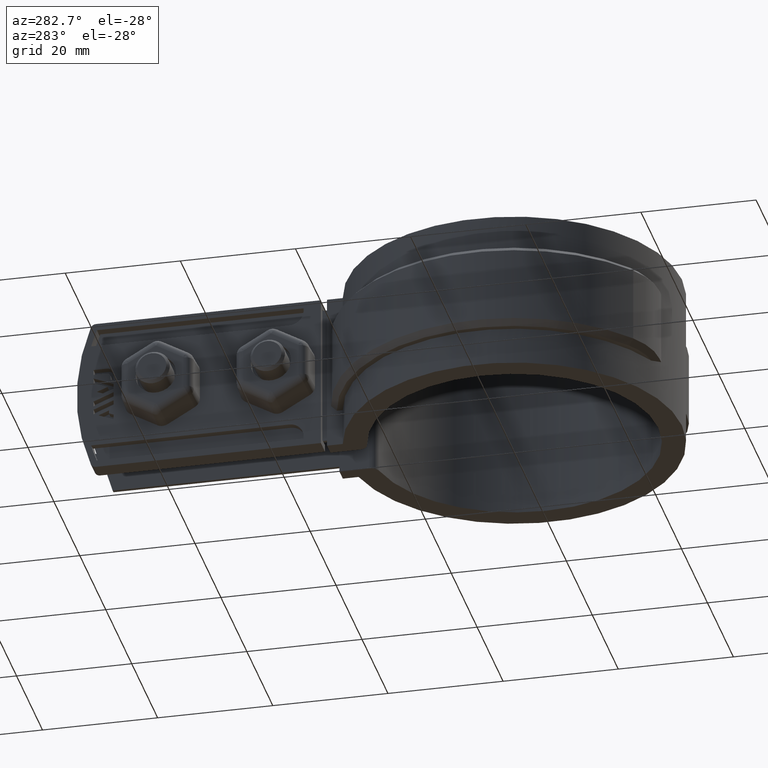
[diagram: clean part render]
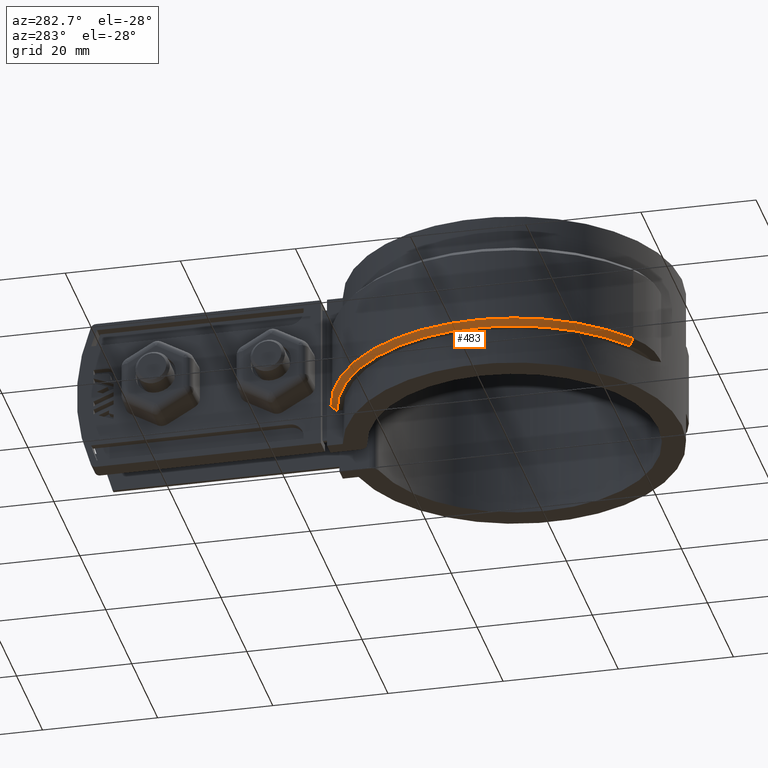
[diagram: same view with one face highlighted and labeled with its STEP entity id]
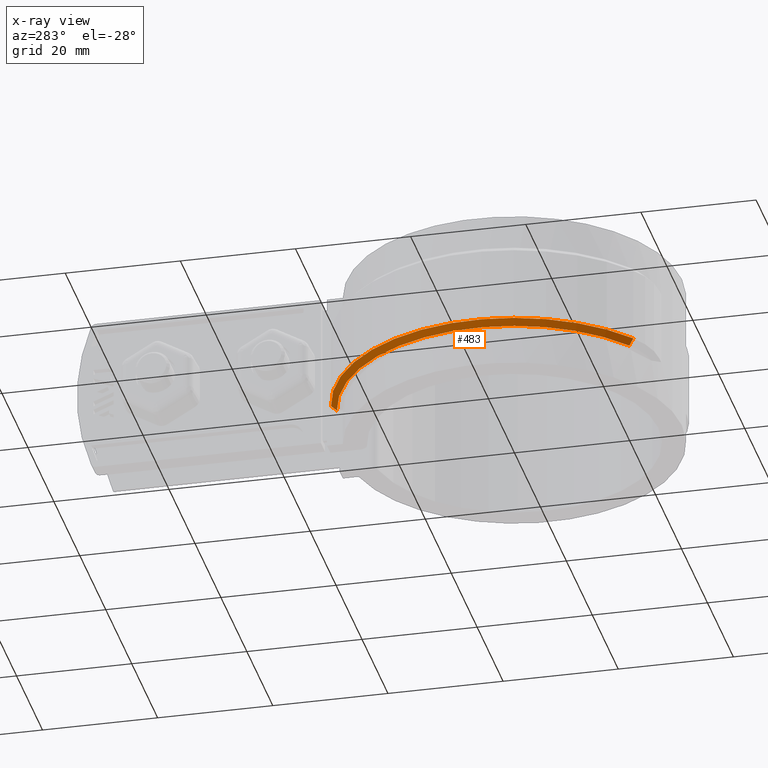
[diagram: x-ray of the same camera — body ghosted, the highlighted face saturated]
A machine part, auxiliary view. The second image highlights one B-rep face of the part: STEP entity #483.
The next image is the same camera in x-ray: the body ghosted, the highlighted face saturated — about 0% of this face is hidden behind the body in this view.
In plain terms, the highlighted conical surface has half-angle 45 deg.
Its self-contained STEP definition (entity closure, byte-faithful):
#483 = ADVANCED_FACE( '', ( #978 ), #979, .T. );
#978 = FACE_OUTER_BOUND( '', #2324, .T. );
#979 = CONICAL_SURFACE( '', #2325, 31.0950000000000, 0.785398163397447 );
#2324 = EDGE_LOOP( '', ( #5029, #5030, #5031, #5032 ) );
#2325 = AXIS2_PLACEMENT_3D( '', #5033, #5034, #5035 );
#5029 = ORIENTED_EDGE( '', *, *, #7540, .F. );
#5030 = ORIENTED_EDGE( '', *, *, #7567, .F. );
#5031 = ORIENTED_EDGE( '', *, *, #7586, .F. );
#5032 = ORIENTED_EDGE( '', *, *, #7561, .F. );
#5033 = CARTESIAN_POINT( '', ( 0.000000000000000, 0.000000000000000, -19.0000000000000 ) );
#5034 = DIRECTION( '', ( 0.000000000000000, 0.000000000000000, 1.00000000000000 ) );
#5035 = DIRECTION( '', ( 1.00000000000000, 0.000000000000000, 0.000000000000000 ) );
#7540 = EDGE_CURVE( '', #8757, #8759, #8760, .T. );
#7561 = EDGE_CURVE( '', #8759, #8795, #8796, .F. );
#7567 = EDGE_CURVE( '', #8802, #8757, #8804, .T. );
#7586 = EDGE_CURVE( '', #8795, #8802, #8830, .T. );
#8757 = VERTEX_POINT( '', #12283 );
#8759 = VERTEX_POINT( '', #12286 );
#8760 = B_SPLINE_CURVE_WITH_KNOTS( '', 3, ( #12287, #12288, #12289, #12290 ), .UNSPECIFIED., .F., .F., ( 4, 4 ), ( 0.000000000000000, 0.00142877906291672 ), .UNSPECIFIED. );
#8795 = VERTEX_POINT( '', #12348 );
#8796 = CIRCLE( '', #12349, 31.0950000000000 );
#8802 = VERTEX_POINT( '', #12356 );
#8804 = CIRCLE( '', #12358, 30.0950000000000 );
#8830 = LINE( '', #12392, #12393 );
#12283 = CARTESIAN_POINT( '', ( -6.10000000000002, 29.4703075145137, -20.0000000000000 ) );
#12286 = CARTESIAN_POINT( '', ( -6.10000000000002, 30.4908023016778, -19.0000000000000 ) );
#12287 = CARTESIAN_POINT( '', ( -6.10000000000002, 29.4703075145137, -20.0000000000000 ) );
#12288 = CARTESIAN_POINT( '', ( -6.10000000000002, 29.8105871020805, -19.6667837153511 ) );
#12289 = CARTESIAN_POINT( '', ( -6.10000000000003, 30.1507483085061, -19.3334465051517 ) );
#12290 = CARTESIAN_POINT( '', ( -6.10000000000003, 30.4908023016778, -19.0000000000000 ) );
#12348 = CARTESIAN_POINT( '', ( -18.6948570380802, -24.8475621606173, -19.0000000000000 ) );
#12349 = AXIS2_PLACEMENT_3D( '', #14267, #14268, #14269 );
#12356 = CARTESIAN_POINT( '', ( -18.0936395742410, -24.0484767076308, -20.0000000000000 ) );
#12358 = AXIS2_PLACEMENT_3D( '', #14283, #14284, #14285 );
#12392 = CARTESIAN_POINT( '', ( -18.6948570380802, -24.8475621606173, -19.0000000000000 ) );
#12393 = VECTOR( '', #14324, 1000.00000000000 );
#14267 = CARTESIAN_POINT( '', ( 0.000000000000000, 0.000000000000000, -19.0000000000000 ) );
#14268 = DIRECTION( '', ( 0.000000000000000, 0.000000000000000, -1.00000000000000 ) );
#14269 = DIRECTION( '', ( -1.00000000000000, 0.000000000000000, 0.000000000000000 ) );
#14283 = CARTESIAN_POINT( '', ( 0.000000000000000, 0.000000000000000, -20.0000000000000 ) );
#14284 = DIRECTION( '', ( 0.000000000000000, 0.000000000000000, -1.00000000000000 ) );
#14285 = DIRECTION( '', ( -1.00000000000000, 0.000000000000000, 0.000000000000000 ) );
#14324 = DIRECTION( '', ( 0.425124945648482, 0.565038742554326, -0.707106781186549 ) );